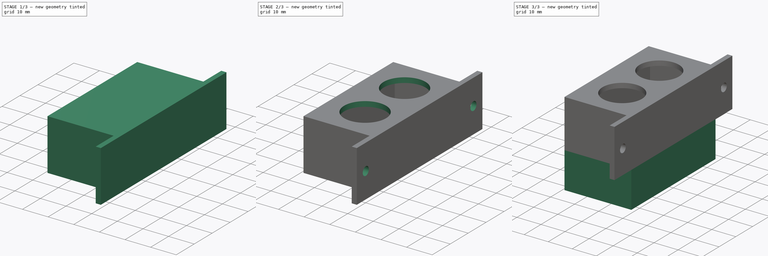
[diagram: build sequence overview — one tinted view per stage of 3, left to right]
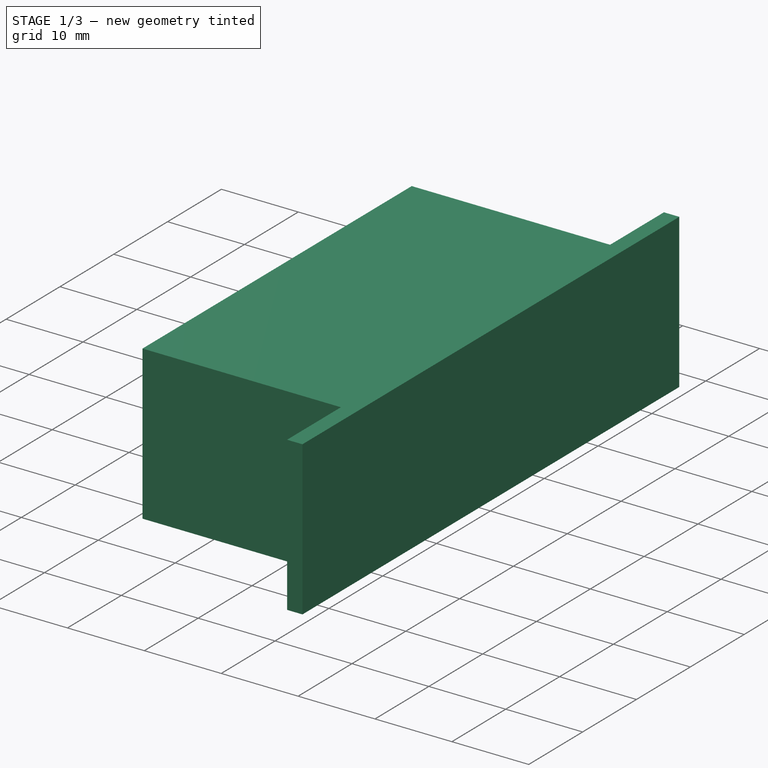
[diagram: stage 1 of 3 — iso view after this stage's code; geometry added in this stage tinted green]
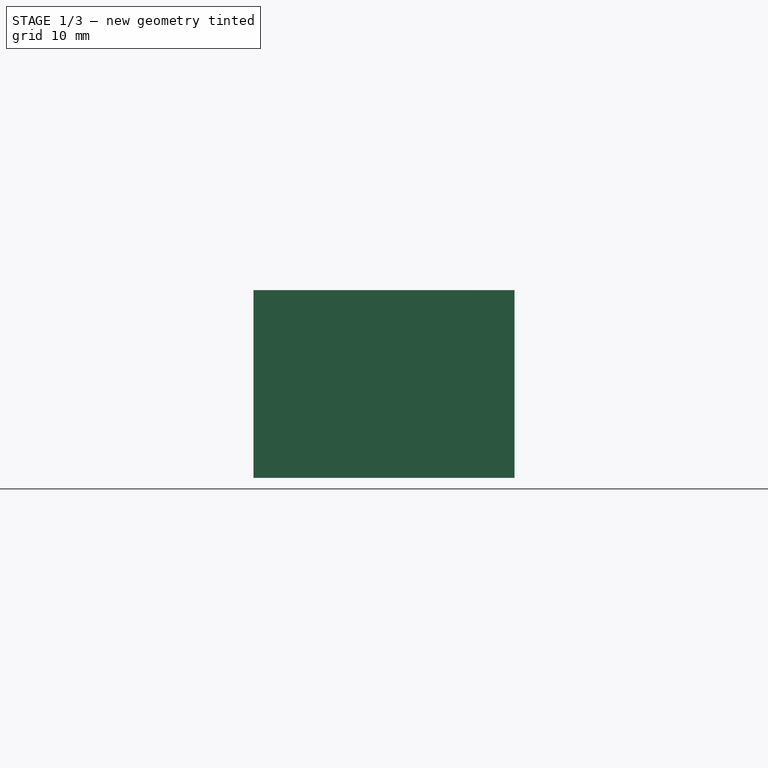
[diagram: stage 1 of 3 — front view after this stage's code; geometry added in this stage tinted green]
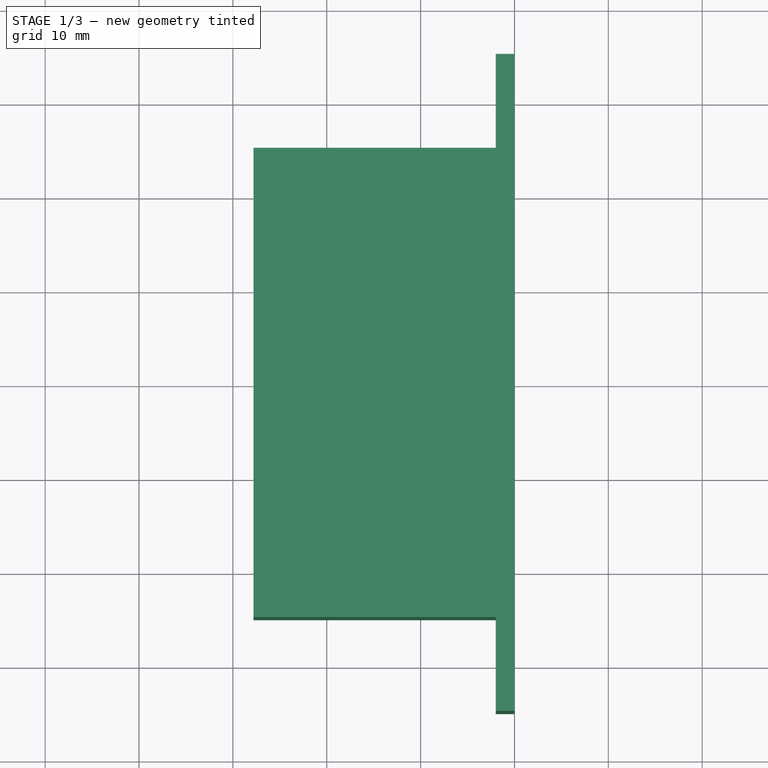
[diagram: stage 1 of 3 — top view after this stage's code; geometry added in this stage tinted green]
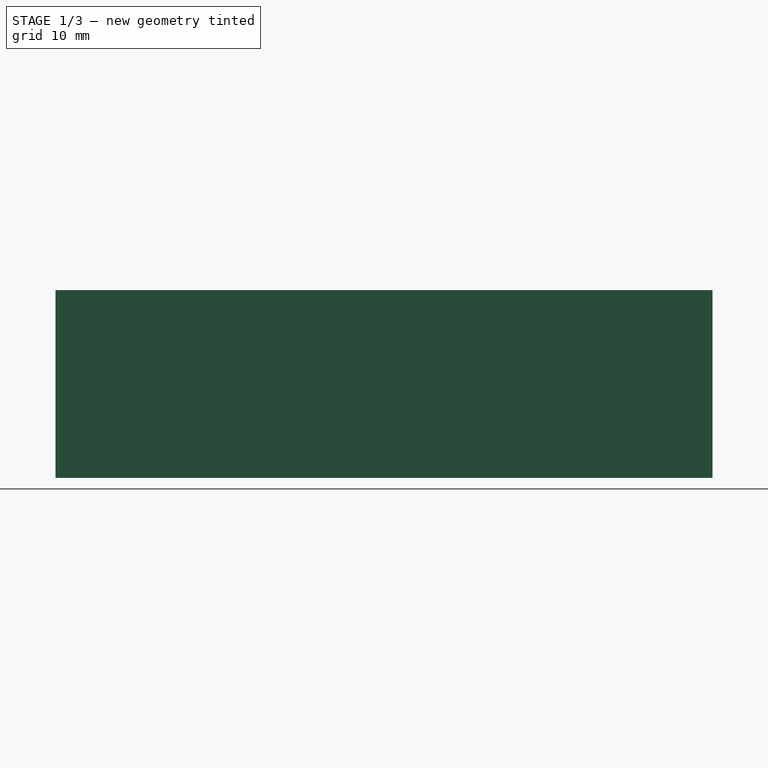
[diagram: stage 1 of 3 — right view after this stage's code; geometry added in this stage tinted green]
FCSTD DOCUMENT  (FreeCAD 0.18.4R)
Label: reset_unlock_button
License: All rights reserved
LicenseURL: http://en.wikipedia.org/wiki/All_rights_reserved
objects: Sketcher::SketchObject×7, PartDesign::Pocket×5, PartDesign::Pad×2, App::MeasureDistance×1, PartDesign::Body×1
note: 22 computed .brp shape members not serialized (recipe doc carries the construction recipe); baked Part::Feature solids carry a one-line shape summary decoded from their .brp

FEATURE [Sketcher::SketchObject] Sketch
  MapMode = 5
  Support = -> [XY_Plane]
  sketch-geometry (8):
    g0: LineSegment StartX=-2 StartY=15.0902 StartZ=0 EndX=0 EndY=15.0902 EndZ=0
    g1: LineSegment StartX=0 StartY=15.0902 StartZ=0 EndX=0 EndY=-54.9098 EndZ=0
    g2: LineSegment StartX=0 StartY=-54.9098 StartZ=0 EndX=-2 EndY=-54.9098 EndZ=0
    g3: LineSegment StartX=-2 StartY=-54.9098 StartZ=0 EndX=-2 EndY=-44.9098 EndZ=0
    g4: LineSegment StartX=-2 StartY=-44.9098 StartZ=0 EndX=-27.8 EndY=-44.9098 EndZ=0
    g5: LineSegment StartX=-27.8 StartY=-44.9098 StartZ=0 EndX=-27.8 EndY=5.09021 EndZ=0
    g6: LineSegment StartX=-27.8 StartY=5.09021 StartZ=0 EndX=-2 EndY=5.09021 EndZ=0
    g7: LineSegment StartX=-2 StartY=5.09021 StartZ=0 EndX=-2 EndY=15.0902 EndZ=0
  constraints (23):
    c: PointOnObject(g0,g-2)
    c: Horizontal(g0)
    c: Coincident(g1,g0)
    c: Vertical(g1)
    c: Coincident(g2,g1)
    c: Vertical(g3)
    c: Coincident(g4,g3)
    c: Coincident(g5,g4)
    c: Coincident(g6,g5)
    c: Coincident(g7,g6)
    c: Coincident(g7,g0)
    c: Vertical(g7)
    c: Parallel(g5,g1)
    c: Parallel(g6,g4)
    c: Perpendicular(g4,g3)
    c: DistanceY(g1,g1) = 70
    c: DistanceY(g7,g7) = 10
    c: Coincident(g3,g2)
    c: Perpendicular(g3,g2)
    c: DistanceY(g3,g3) = 10
    c: DistanceX(g2,g2) = 2
    c: DistanceX(g0,g0) = 2
    c: DistanceX(g6,g6) = 25.8
FEATURE [PartDesign::Pad] Pad
  Length = 20
  Length2 = 100
  Profile = -> Sketch
  Type = 0
FEATURE [Sketcher::SketchObject] Sketch001
  ExternalGeometry = -> [Pad]
  MapMode = 5
  Placement = pos=(0,0,0) rot=(1,0,0;3.14159rad)
  Support = -> [Pad]
  sketch-geometry (4):
    g0: LineSegment StartX=-25.8 StartY=-3.09021 StartZ=0 EndX=-2 EndY=-3.09021 EndZ=0
    g1: LineSegment StartX=-2 StartY=-3.09021 StartZ=0 EndX=-2 EndY=42.9098 EndZ=0
    g2: LineSegment StartX=-2 StartY=42.9098 StartZ=0 EndX=-25.8 EndY=42.9098 EndZ=0
    g3: LineSegment StartX=-25.8 StartY=42.9098 StartZ=0 EndX=-25.8 EndY=-3.09021 EndZ=0
  constraints (14):
    c: Coincident(g0,g1)
    c: Coincident(g1,g2)
    c: Coincident(g2,g3)
    c: Coincident(g3,g0)
    c: Horizontal(g0)
    c: Horizontal(g2)
    c: Vertical(g1)
    c: Vertical(g3)
    c: Distance(g2,g-3) = 2
    c: Distance(g0,g-4) = 2
    c: Distance(g0,g-5) = 2
    c: Distance(g1,g-6) = 2
    c: Distance(g-4,g-5) = 50
    c: Distance(g-5,g-6) = 27.8
FEATURE [PartDesign::Pocket] Pocket
  BaseFeature = -> Pad
  Length = 18
  Length2 = 100
  Profile = -> Sketch001
  Type = 0
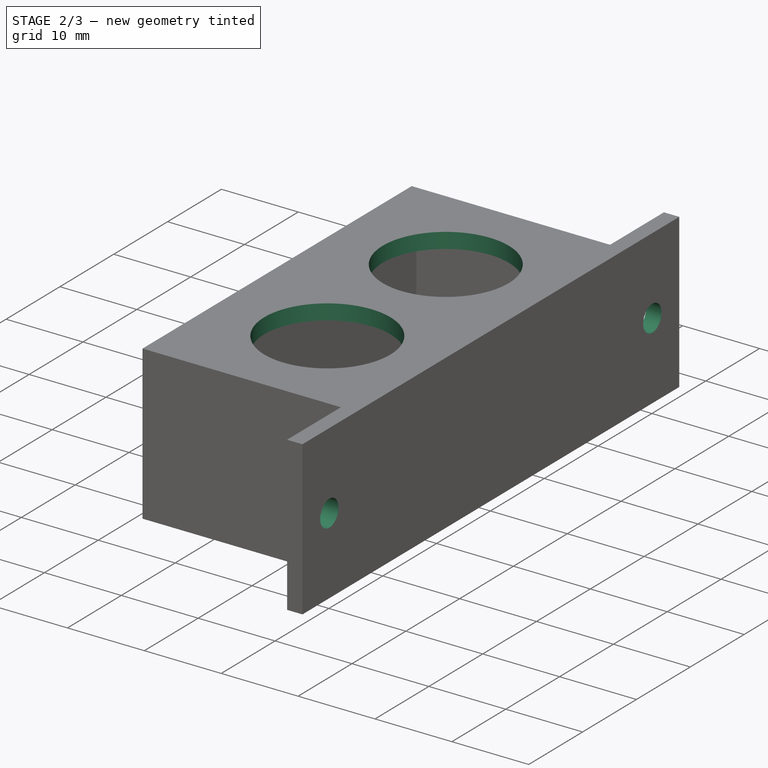
[diagram: stage 2 of 3 — iso view after this stage's code; geometry added in this stage tinted green]
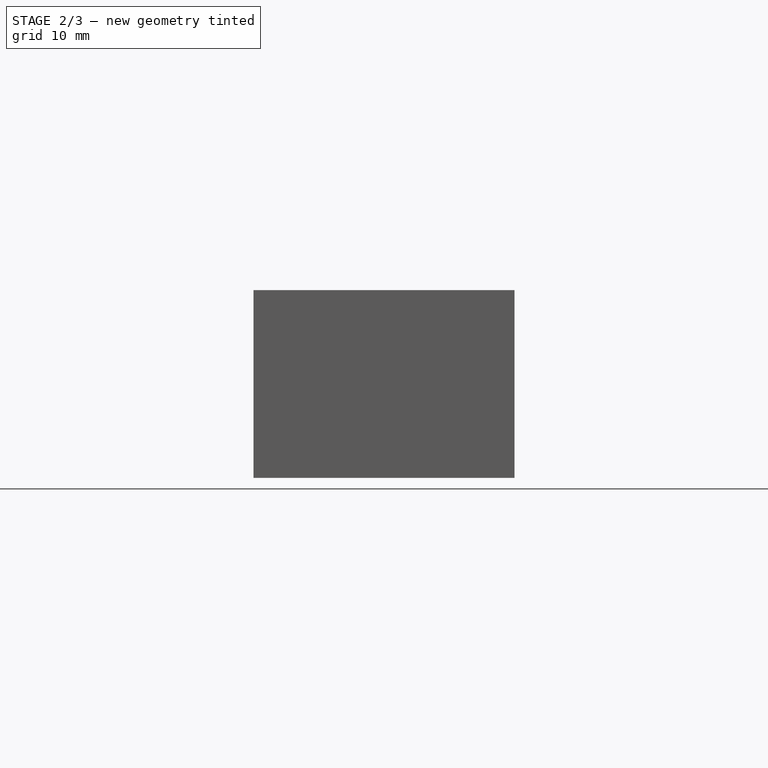
[diagram: stage 2 of 3 — front view after this stage's code; geometry added in this stage tinted green]
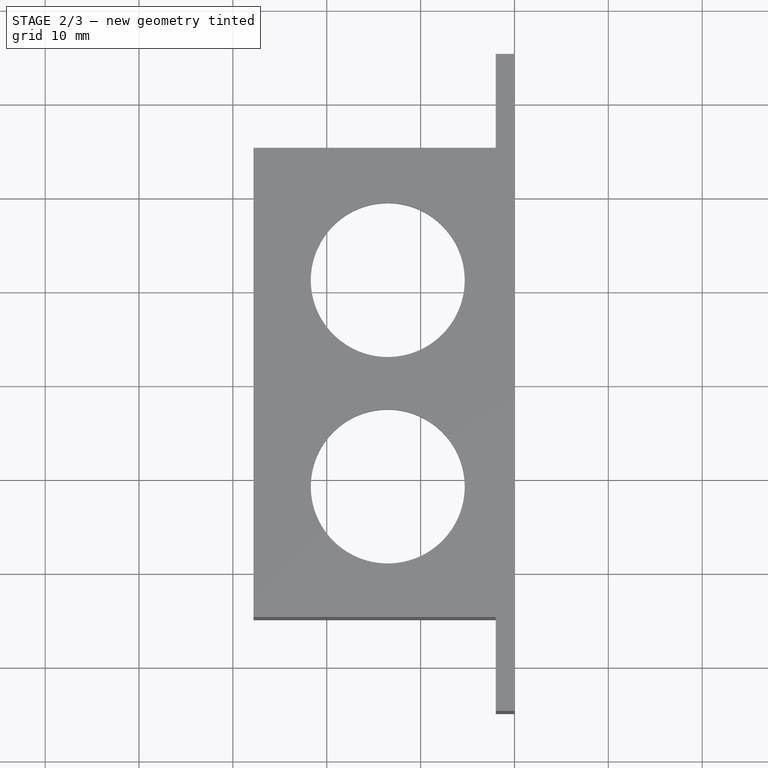
[diagram: stage 2 of 3 — top view after this stage's code; geometry added in this stage tinted green]
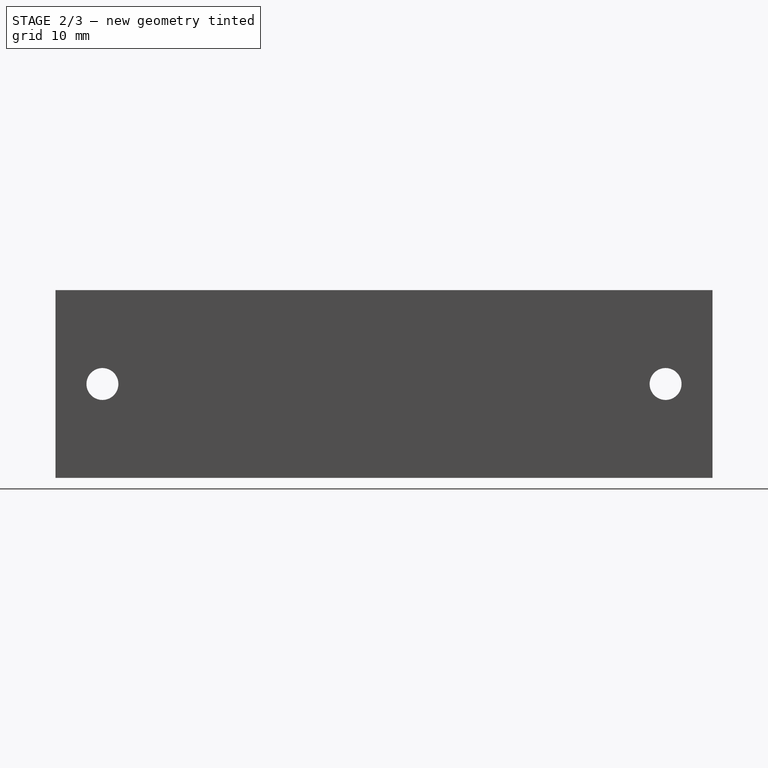
[diagram: stage 2 of 3 — right view after this stage's code; geometry added in this stage tinted green]
FEATURE [Sketcher::SketchObject] Sketch002
  ExternalGeometry = -> [Pocket]
  MapMode = 5
  Placement = pos=(0,0,20) rot=(0,0,1;0rad)
  Support = -> [Pocket]
  sketch-geometry (2):
    g0: Circle CenterX=-13.5 CenterY=-9.00421 CenterZ=0 NormalX=0 NormalY=0 NormalZ=1 AngleXU=0 Radius=8.2
    g1: Circle CenterX=-13.5 CenterY=-31.0042 CenterZ=0 NormalX=0 NormalY=0 NormalZ=1 AngleXU=0 Radius=8.2
  constraints (5):
    c: Distance(g0,g-6) = 13.5
    c: Distance(g1,g-6) = 13.5
    c: Radius(g0) = 8.2
    c: Radius(g1) = 8.2
    c: Distance(g1,g0) = 22
FEATURE [PartDesign::Pocket] Pocket001
  BaseFeature = -> Pocket
  Length = 5
  Length2 = 100
  Profile = -> Sketch002
  Type = 0
FEATURE [App::MeasureDistance] Distance  label="Distance: 5,99 mm"
  Distance = 5.98814
  P1 = (-13.7821,-38.9226,20)
  P2 = (-13.8879,-44.9098,20)
FEATURE [Sketcher::SketchObject] Sketch003
  ExternalGeometry = -> [Pocket001]
  MapMode = 5
  Placement = pos=(-2,0,0) rot=(0.57735,-0.57735,-0.57735;2.0944rad)
  Support = -> [Pocket001]
  sketch-geometry (1):
    g0: Circle CenterX=49.9098 CenterY=10 CenterZ=0 NormalX=0 NormalY=0 NormalZ=1 AngleXU=0 Radius=1.7
  constraints (3):
    c: Distance(g0,g-4) = 5
    c: Distance(g0,g-3) = 10
    c: Radius(g0) = 1.7
FEATURE [PartDesign::Pocket] Pocket002
  BaseFeature = -> Pocket001
  Length = 5
  Length2 = 100
  Profile = -> Sketch003
  Type = 0
FEATURE [Sketcher::SketchObject] Sketch004
  ExternalGeometry = -> [Pocket002]
  MapMode = 5
  Placement = pos=(-2,0,0) rot=(0.57735,-0.57735,-0.57735;2.0944rad)
  Support = -> [Pocket002]
  sketch-geometry (1):
    g0: Circle CenterX=-10.0902 CenterY=10 CenterZ=0 NormalX=0 NormalY=0 NormalZ=1 AngleXU=0 Radius=1.7
  constraints (3):
    c: Distance(g0,g-4) = 5
    c: Distance(g0,g-3) = 10
    c: Radius(g0) = 1.7
FEATURE [PartDesign::Pocket] Pocket003
  BaseFeature = -> Pocket002
  Length = 5
  Length2 = 100
  Profile = -> Sketch004
  Type = 0
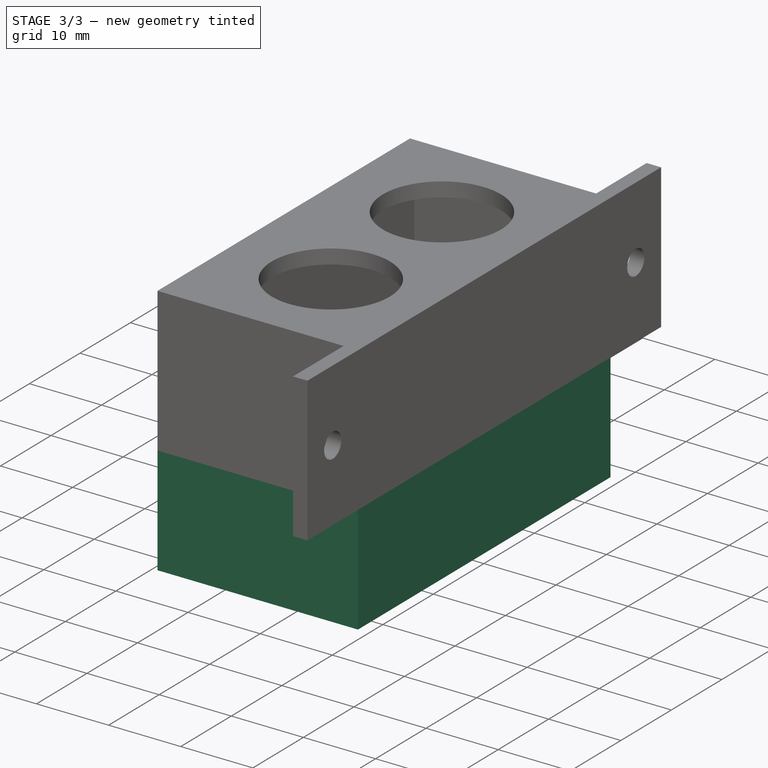
[diagram: stage 3 of 3 — iso view after this stage's code; geometry added in this stage tinted green]
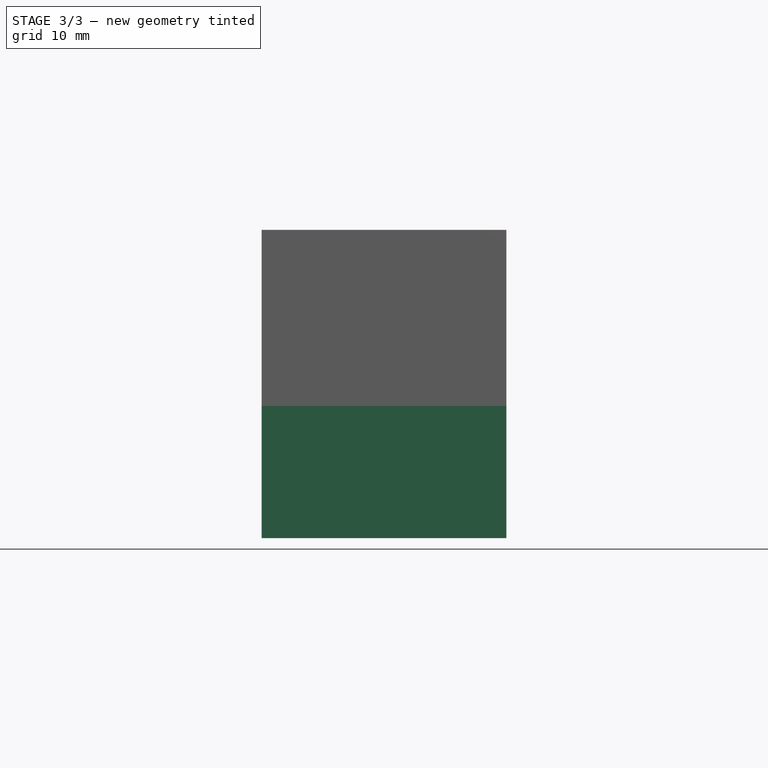
[diagram: stage 3 of 3 — front view after this stage's code; geometry added in this stage tinted green]
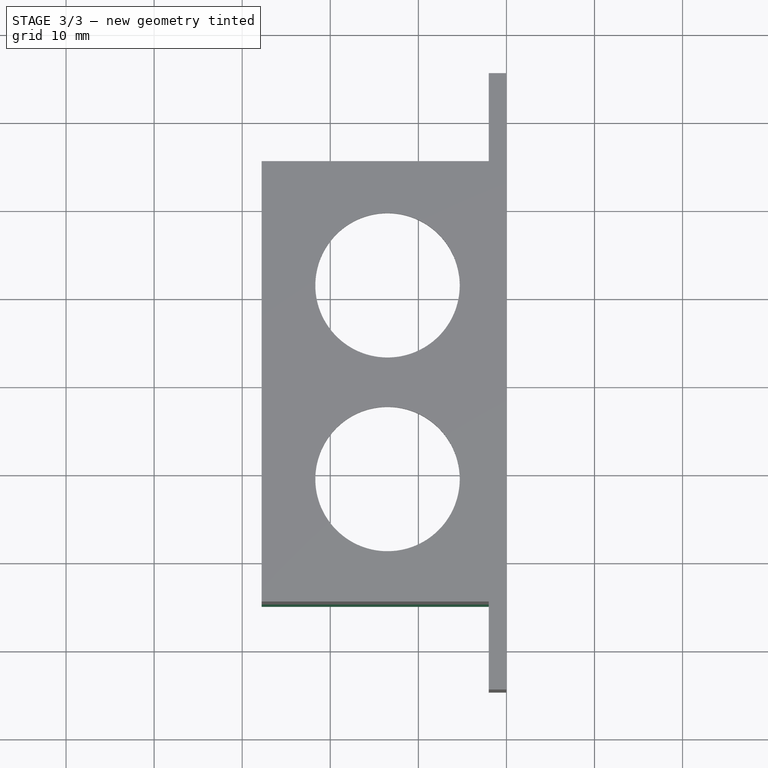
[diagram: stage 3 of 3 — top view after this stage's code; geometry added in this stage tinted green]
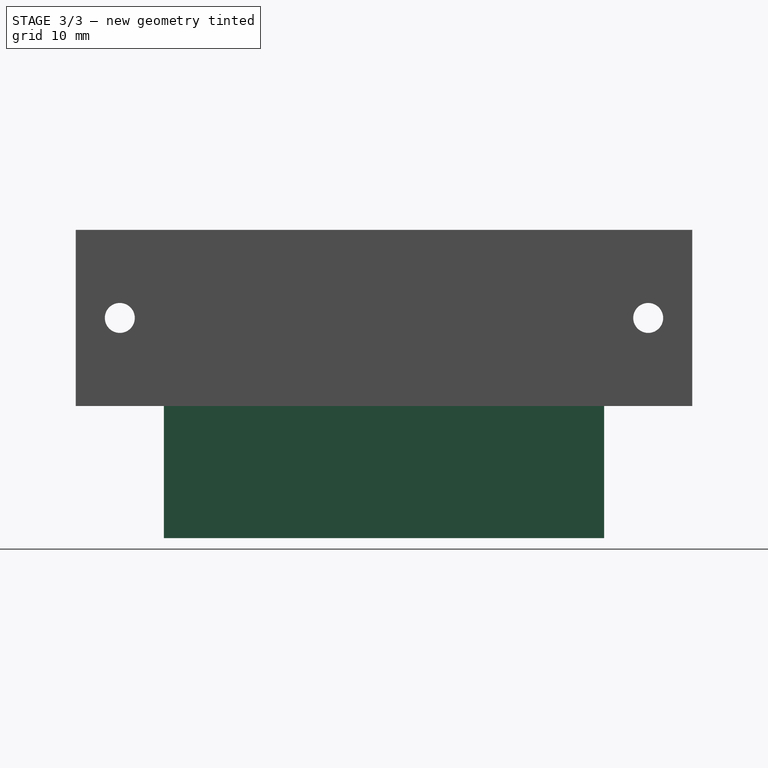
[diagram: stage 3 of 3 — right view after this stage's code; geometry added in this stage tinted green]
FEATURE [Sketcher::SketchObject] Sketch005
  ExternalGeometry = -> [Pocket003]
  MapMode = 5
  Placement = pos=(0,0,0) rot=(1,0,0;3.14159rad)
  Support = -> [Pocket003]
  sketch-geometry (16):
    g0: LineSegment StartX=-27.8 StartY=42.9098 StartZ=0 EndX=-2 EndY=42.9098 EndZ=0
    g1: LineSegment StartX=-2 StartY=42.9098 StartZ=0 EndX=-2 EndY=44.9098 EndZ=0
    g2: LineSegment StartX=-2 StartY=44.9098 StartZ=0 EndX=-27.8 EndY=44.9098 EndZ=0
    g3: LineSegment StartX=-27.8 StartY=44.9098 StartZ=0 EndX=-27.8 EndY=42.9098 EndZ=0
    g4: LineSegment StartX=-27.8 StartY=-5.09021 StartZ=0 EndX=-25.8 EndY=-5.09021 EndZ=0
    g5: LineSegment StartX=-25.8 StartY=-5.09021 StartZ=0 EndX=-25.8 EndY=42.9098 EndZ=0
    g6: LineSegment StartX=-25.8 StartY=42.9098 StartZ=0 EndX=-27.8 EndY=42.9098 EndZ=0
    g7: LineSegment StartX=-27.8 StartY=42.9098 StartZ=0 EndX=-27.8 EndY=-5.09021 EndZ=0
    g8: LineSegment StartX=-25.8 StartY=-5.09021 StartZ=0 EndX=-2 EndY=-5.09021 EndZ=0
    g9: LineSegment StartX=-2 StartY=-5.09021 StartZ=0 EndX=-2 EndY=-3.09021 EndZ=0
    g10: LineSegment StartX=-2 StartY=-3.09021 StartZ=0 EndX=-25.8 EndY=-3.09021 EndZ=0
    g11: LineSegment StartX=-25.8 StartY=-3.09021 StartZ=0 EndX=-25.8 EndY=-5.09021 EndZ=0
    g12: LineSegment StartX=0 StartY=44.9098 StartZ=0 EndX=-2 EndY=44.9098 EndZ=0
    g13: LineSegment StartX=-2 StartY=44.9098 StartZ=0 EndX=-2 EndY=-5.09021 EndZ=0
    g14: LineSegment StartX=-2 StartY=-5.09021 StartZ=0 EndX=0 EndY=-5.09021 EndZ=0
    g15: LineSegment StartX=0 StartY=-5.09021 StartZ=0 EndX=0 EndY=44.9098 EndZ=0
  constraints (38):
    c: Coincident(g0,g1)
    c: Coincident(g1,g2)
    c: Coincident(g2,g3)
    c: Coincident(g3,g0)
    c: Horizontal(g0)
    c: Vertical(g1)
    c: Vertical(g3)
    c: Coincident(g1,g-4)
    c: Coincident(g2,g-6)
    c: PointOnObject(g-7,g0)
    c: Coincident(g4,g5)
    c: Coincident(g5,g6)
    c: Coincident(g6,g7)
    c: Coincident(g7,g4)
    c: Horizontal(g4)
    c: Vertical(g5)
    c: Coincident(g0,g6)
    c: Coincident(g-7,g5)
    c: Coincident(g4,g-9)
    c: Coincident(g8,g9)
    c: Coincident(g9,g10)
    c: Coincident(g10,g11)
    c: Coincident(g11,g8)
    c: Horizontal(g8)
    c: Vertical(g9)
    c: Coincident(g10,g-7)
    c: Coincident(g8,g4)
    c: Coincident(g9,g-8)
    c: Coincident(g12,g13)
    c: Coincident(g13,g14)
    c: Coincident(g14,g15)
    c: Coincident(g15,g12)
    c: Horizontal(g12)
    c: Horizontal(g14)
    c: Vertical(g15)
    c: Coincident(g12,g1)
    c: Coincident(g13,g8)
    c: PointOnObject(g14,g-3)
FEATURE [PartDesign::Pad] Pad001
  BaseFeature = -> Pocket003
  Length = 15
  Length2 = 100
  Profile = -> Sketch005
  Type = 0
FEATURE [Sketcher::SketchObject] Sketch006
  ExternalGeometry = -> [Pad001]
  MapMode = 5
  Placement = pos=(0,0,-15) rot=(1,0,0;3.14159rad)
  Support = -> [Pad001]
  sketch-geometry (4):
    g0: LineSegment StartX=-25.8 StartY=-3.09021 StartZ=0 EndX=-2 EndY=-3.09021 EndZ=0
    g1: LineSegment StartX=-2 StartY=-3.09021 StartZ=0 EndX=-2 EndY=42.9098 EndZ=0
    g2: LineSegment StartX=-2 StartY=42.9098 StartZ=0 EndX=-25.8 EndY=42.9098 EndZ=0
    g3: LineSegment StartX=-25.8 StartY=42.9098 StartZ=0 EndX=-25.8 EndY=-3.09021 EndZ=0
  constraints (12):
    c: Coincident(g0,g1)
    c: Coincident(g1,g2)
    c: Coincident(g2,g3)
    c: Coincident(g3,g0)
    c: Horizontal(g0)
    c: Horizontal(g2)
    c: Vertical(g1)
    c: Vertical(g3)
    c: Distance(g2,g-3) = 2
    c: Distance(g0,g-4) = 2
    c: Distance(g0,g-5) = 2
    c: Distance(g0,g-6) = 2
FEATURE [PartDesign::Pocket] Pocket004
  BaseFeature = -> Pad001
  Length = 15
  Length2 = 100
  Profile = -> Sketch006
  Type = 0
FEATURE [PartDesign::Body] Body
  Group = -> [Sketch,Pad,Sketch001,Pocket,Sketch002,Pocket001,Sketch003,Pocket002,Sketch004,Pocket003,Sketch005,Pad001,Sketch006,Pocket004]
  Origin = -> Origin
  Tip = -> Pocket004
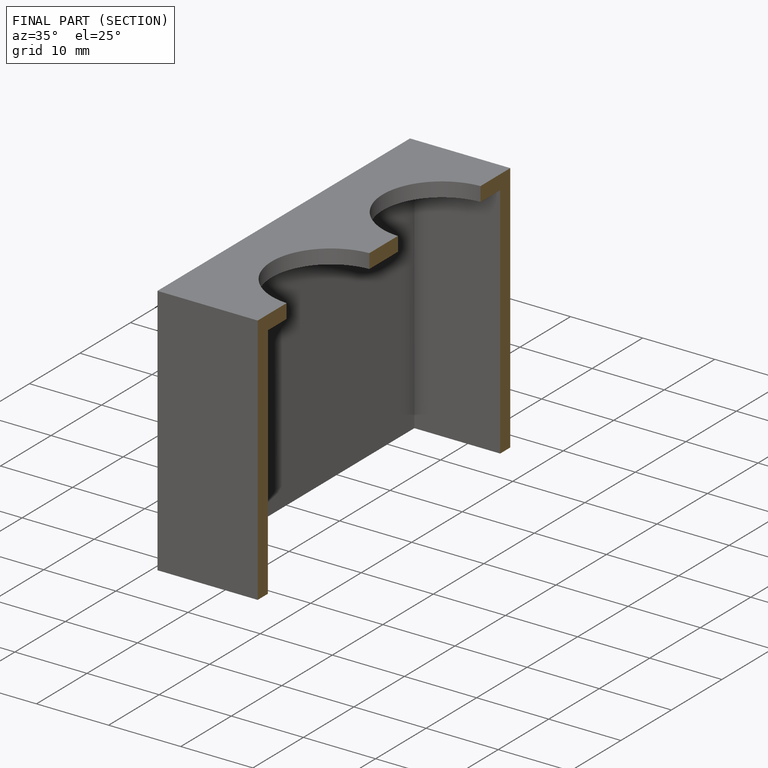
[diagram: finished part — half-section view (interior)]
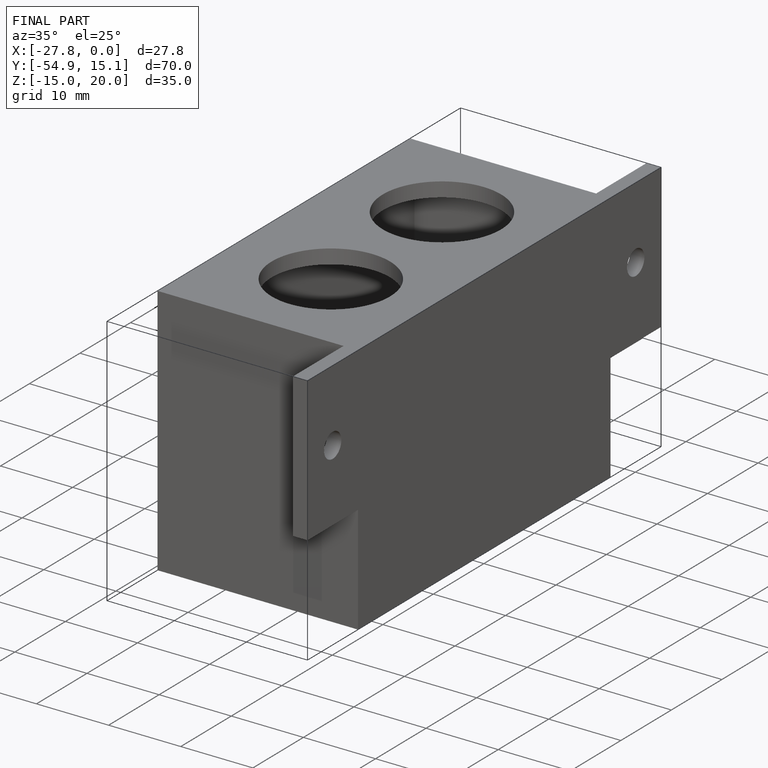
[diagram: finished part — iso view with bounding-box wireframe]
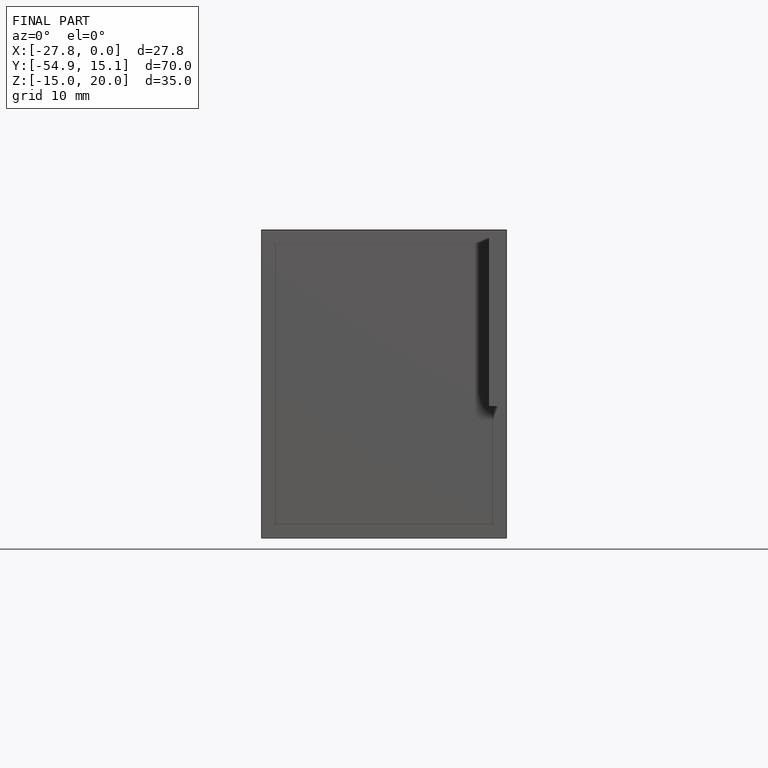
[diagram: finished part — front view with bounding-box wireframe]
